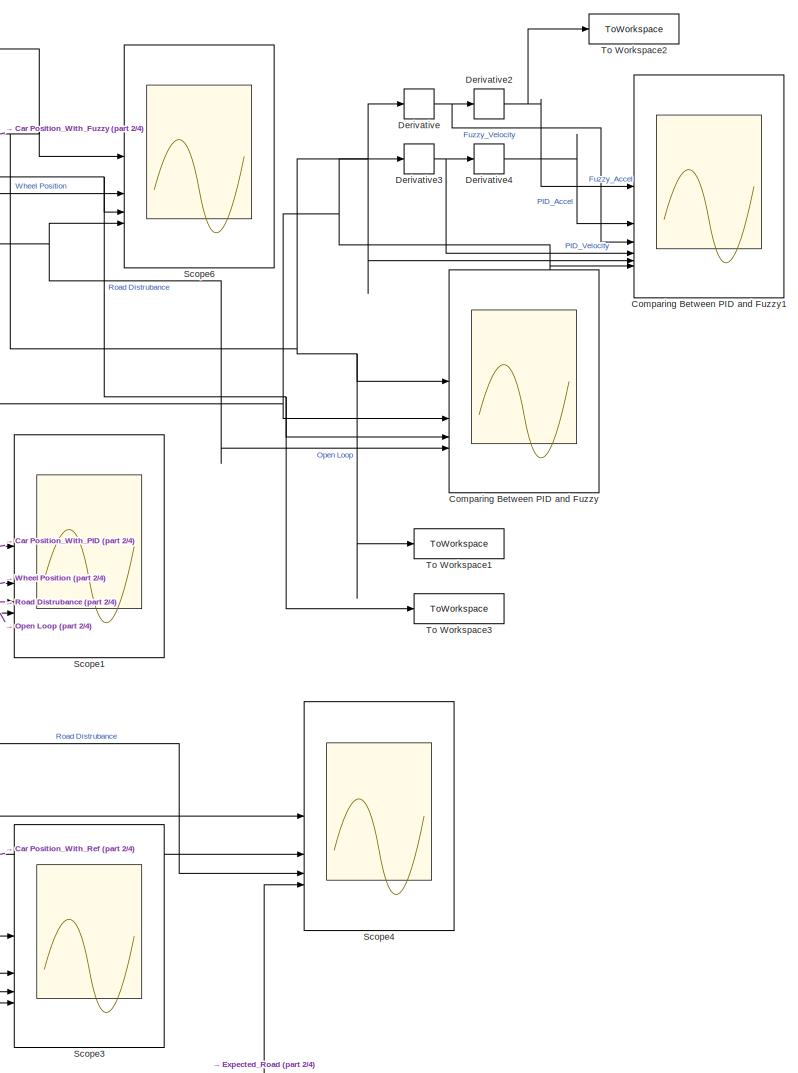
[diagram: root canvas - part 1/4, central region]
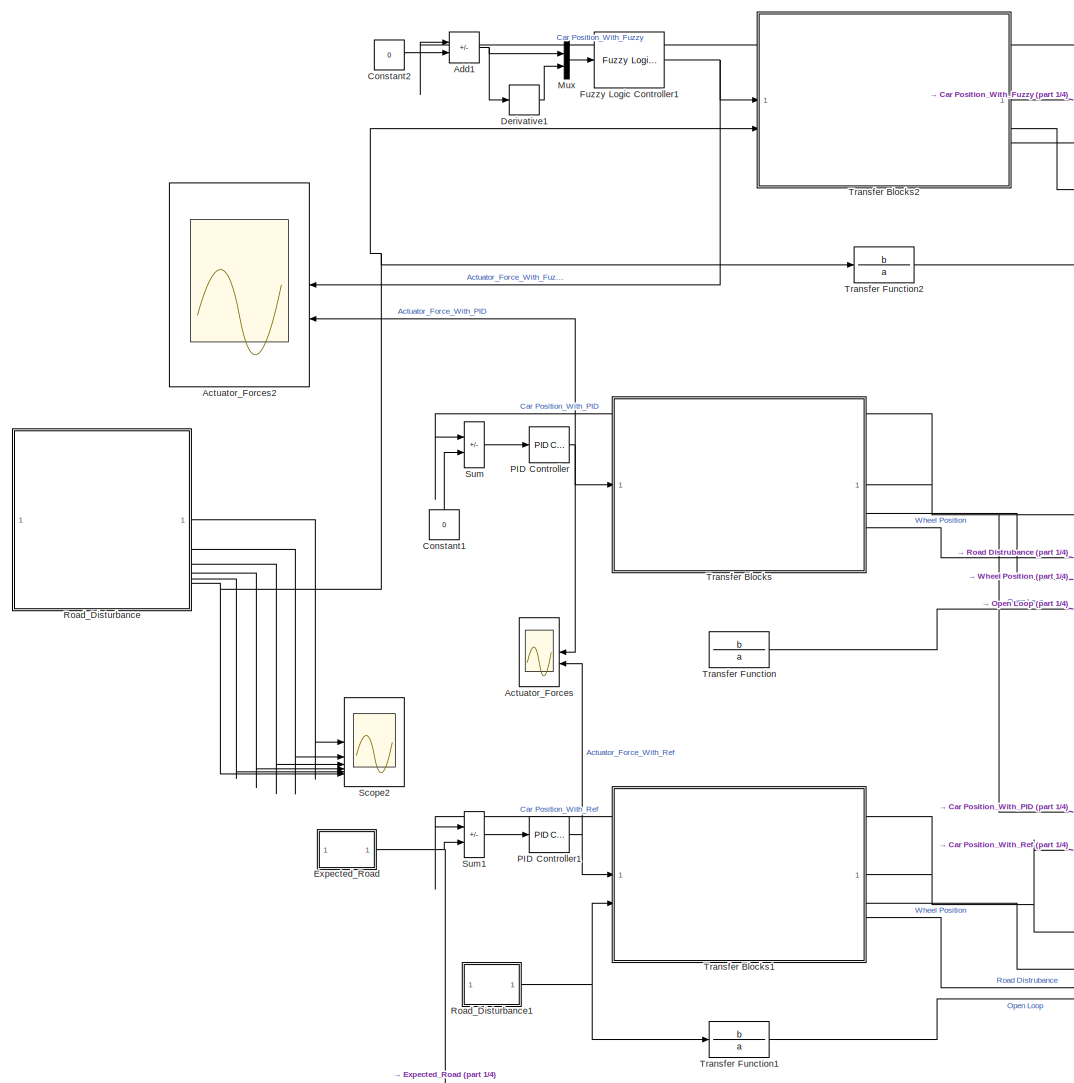
[diagram: root canvas - part 2/4, middle left region]
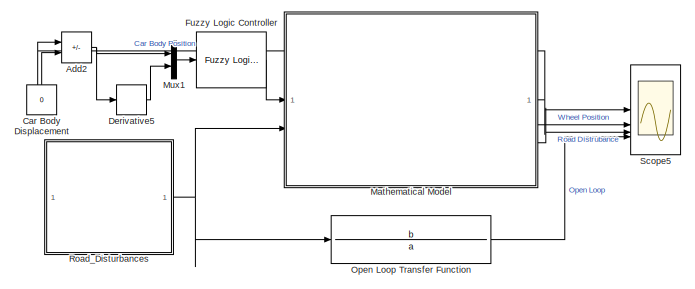
[diagram: root canvas - part 3/4, bottom right region]
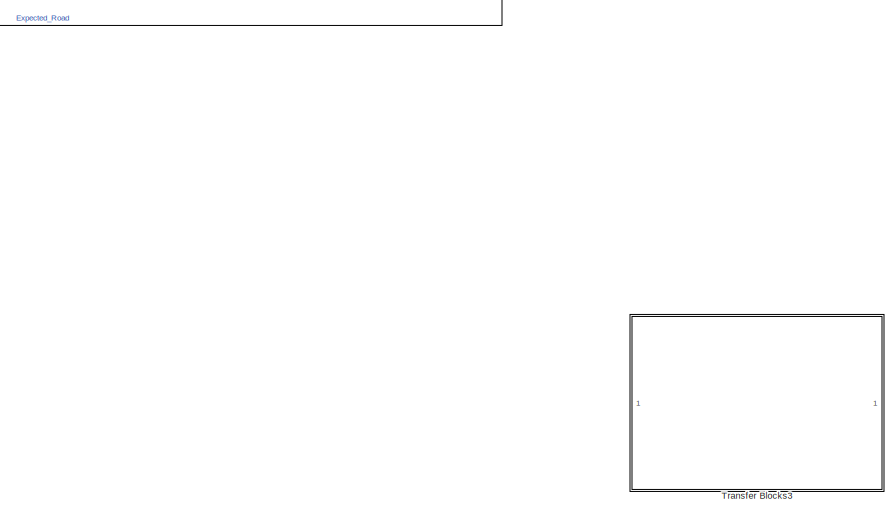
[diagram: root canvas - part 4/4, bottom center region]
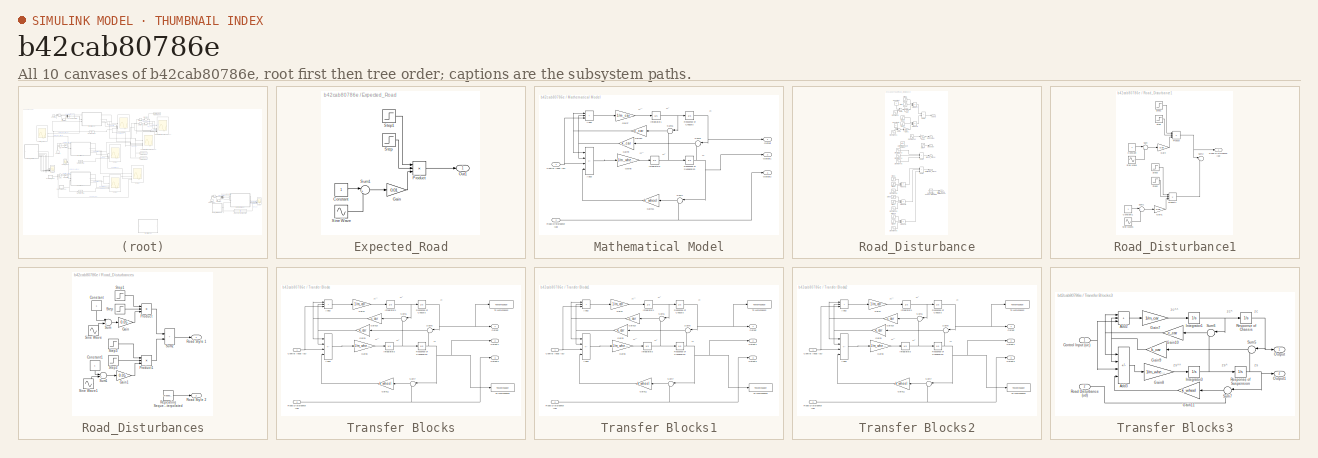
[diagram: thumbnail index - all 10 canvases of the model, root first then tree order]
MODEL slx_b42cab80786e
KIND model
CONFIG AbsTol = auto
CONFIG EnableMultiTasking = off
CONFIG FixedStep = 0.001
CONFIG MaxStep = 1e-3
CONFIG MinStep = auto
CONFIG RelTol = 1e-3
CONFIG SampleTimeConstraint = Unconstrained
CONFIG SolverName = FixedStepAuto
CONFIG StartTime = 0.0
CONFIG StopTime = 10
BLOCK [Scope] Actuator_Forces
  Commented = on
  Floating = off
  NameLocation = top
  NumInputPorts = 2
  ScopeSpecificationString = Simulink.scopes.TimeScopeBlockCfg('CurrentConfiguration', extmgr.ConfigurationSet(extmgr.Configuration('Core','General UI',true),extmgr.Configuration('Core','Source UI',true),extmgr.Configuration('Sources','WiredSimulink',true,'DataLoggingVariableName','ScopeData1'),extmgr.Configuration('Visuals','Time Domain',true,'SerializedDisplays',{struct('MinYLimReal','-1380.89586','MaxYLimReal','948.90487',...<+1524ch>
BLOCK [Scope] Actuator_Forces2
  Floating = off
  NameLocation = top
  NumInputPorts = 2
  ScopeSpecificationString = Simulink.scopes.TimeScopeBlockCfg('CurrentConfiguration', extmgr.ConfigurationSet(extmgr.Configuration('Core','General UI',true),extmgr.Configuration('Core','Source UI',true),extmgr.Configuration('Sources','WiredSimulink',true,'DataLoggingVariableName','ScopeData1'),extmgr.Configuration('Visuals','Time Domain',true,'SerializedDisplays',{struct('MinYLimReal','-1975.74271','MaxYLimReal','917.35302',...<+1553ch>
BLOCK [Sum] Add1
  IconShape = rectangular
  Inputs = -+
BLOCK [Sum] Add2
  IconShape = rectangular
  Inputs = -+
BLOCK [Constant] Car Body Displacement
  Value = 0
BLOCK [Scope] Comparing Between PID and Fuzzy
  Floating = off
  NumInputPorts = 4
  ScopeSpecificationString = Simulink.scopes.TimeScopeBlockCfg('CurrentConfiguration', extmgr.ConfigurationSet(extmgr.Configuration('Core','General UI',true),extmgr.Configuration('Core','Source UI',true),extmgr.Configuration('Sources','WiredSimulink',true,'DataLoggingVariableName','ScopeData3'),extmgr.Configuration('Visuals','Time Domain',true,'SerializedDisplays',{struct('MinYLimReal','-0.09339','MaxYLimReal','0.17281','YLab...<+1987ch>
BLOCK [Scope] Comparing Between PID and Fuzzy1
  Floating = off
  NumInputPorts = 6
  ScopeSpecificationString = Simulink.scopes.TimeScopeBlockCfg('CurrentConfiguration', extmgr.ConfigurationSet(extmgr.Configuration('Core','General UI',true),extmgr.Configuration('Core','Source UI',true),extmgr.Configuration('Sources','WiredSimulink',true,'DataLoggingVariableName','MF_5','DataLogging',true),extmgr.Configuration('Visuals','Time Domain',true,'SerializedDisplays',{struct('MinYLimReal','-1.27315','MaxYLimReal','1...<+1760ch>
BLOCK [Constant] Constant1
  NameLocation = right
  Value = 0
BLOCK [Constant] Constant2
  Value = 0
BLOCK [Derivative] Derivative
BLOCK [Derivative] Derivative1
BLOCK [Derivative] Derivative2
BLOCK [Derivative] Derivative3
BLOCK [Derivative] Derivative4
BLOCK [Derivative] Derivative5
BLOCK [SubSystem] Expected_Road
  Commented = on
BLOCK [Constant] Expected_Road/Constant
BLOCK [Gain] Expected_Road/Gain
  Gain = 0.01
BLOCK [Outport] Expected_Road/Out1
BLOCK [Product] Expected_Road/Product
  Inputs = 3
BLOCK [Sin] Expected_Road/Sine Wave
  Frequency = 0.5*pi
  Phase = pi/4
  SampleTime = 0
BLOCK [Step] Expected_Road/Step
  After = 0
  Before = 1
  SampleTime = 0
  Time = 4.5
BLOCK [Step] Expected_Road/Step1
  SampleTime = 0
  Time = 0.5
BLOCK [Sum] Expected_Road/Sum1
  Inputs = |+-
BLOCK [Reference] Fuzzy Logic Controller   REF=fuzblock/Fuzzy Logic   (lib defined in mdl_858b3b3e7478)
Controller
  SourceBlock = fuzblock/Fuzzy Logic \nController
  SourceType = Fuzzy Inference System
BLOCK [Reference] Fuzzy Logic Controller1  REF=fuzblock/Fuzzy Logic   (lib defined in mdl_858b3b3e7478)
Controller
  SourceBlock = fuzblock/Fuzzy Logic \nController
  SourceType = Fuzzy Inference System
BLOCK [SubSystem] Mathematical Model
BLOCK [Sum] Mathematical Model/Add2
  IconShape = rectangular
  Inputs = +++
BLOCK [Sum] Mathematical Model/Add3
  IconShape = rectangular
  Inputs = ---+
BLOCK [Inport] Mathematical Model/Control Input (uc)
BLOCK [Gain] Mathematical Model/Gain10
  Gain = c_car
  NameLocation = top
BLOCK [Gain] Mathematical Model/Gain11
  Gain = k_wheel
  NameLocation = top
BLOCK [Gain] Mathematical Model/Gain7
  Gain = 1/m_car
BLOCK [Gain] Mathematical Model/Gain8
  Gain = 1/m_wheel
BLOCK [Gain] Mathematical Model/Gain9
  Gain = k_car
  NameLocation = top
BLOCK [Integrator] Mathematical Model/Integrator1
BLOCK [Integrator] Mathematical Model/Integrator3
BLOCK [Outport] Mathematical Model/Output
BLOCK [Outport] Mathematical Model/Output1
  Port = 2
BLOCK [Outport] Mathematical Model/Output2
  Port = 3
BLOCK [Integrator] Mathematical Model/Response of Chassis
BLOCK [Integrator] Mathematical Model/Response of Suspension
BLOCK [Inport] Mathematical Model/Road Disturbance (ud)
  Port = 2
BLOCK [Sum] Mathematical Model/Sum5
  Inputs = |-+
  NameLocation = top
BLOCK [Sum] Mathematical Model/Sum6
  Inputs = |-+
  NameLocation = top
BLOCK [Sum] Mathematical Model/Sum7
  Inputs = |-+
  NameLocation = top
BLOCK [Mux] Mux
  DisplayOption = bar
  Inputs = 2
BLOCK [Mux] Mux1
  DisplayOption = bar
  Inputs = 2
BLOCK [TransferFcn] Open Loop Transfer Function
  Denominator = a
  Numerator = b
BLOCK [Reference] PID Controller  REF=slpidlib/PID Controller
  Commented = on
  LibrarySourceBlock = simulink/Continuous/PID Controller
  SourceBlock = slpidlib/PID Controller
  SourceType = PID 1dof
BLOCK [Reference] PID Controller1  REF=slpidlib/PID Controller
  Commented = on
  LibrarySourceBlock = simulink/Continuous/PID Controller
  SourceBlock = slpidlib/PID Controller
  SourceType = PID 1dof
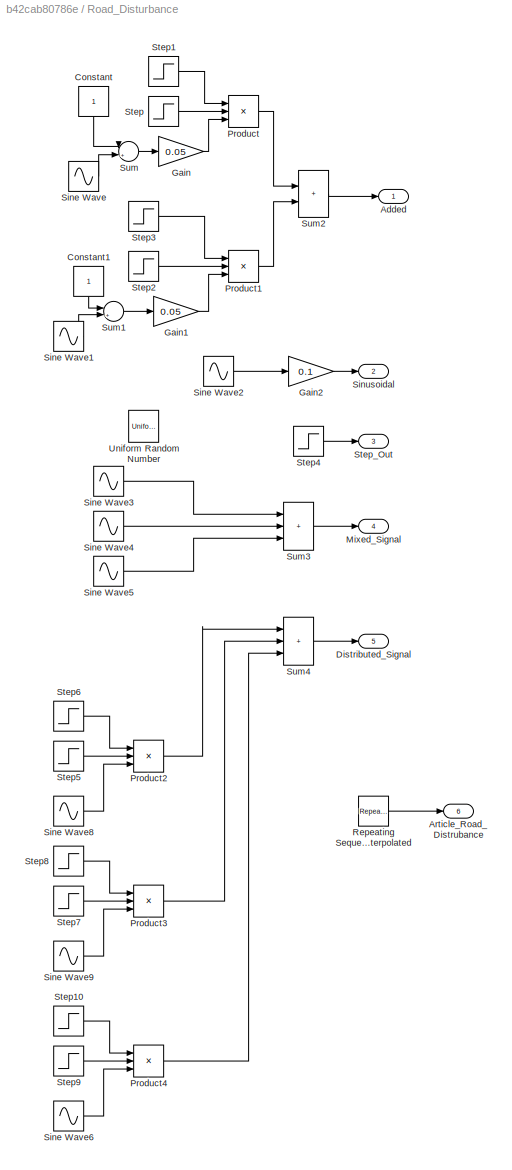
BLOCK [SubSystem] Road_Disturbance
BLOCK [Outport] Road_Disturbance/Added
BLOCK [Outport] Road_Disturbance/Article_Road_Distrubance
  Port = 6
BLOCK [Constant] Road_Disturbance/Constant
  NameLocation = left
BLOCK [Constant] Road_Disturbance/Constant1
  NameLocation = left
BLOCK [Outport] Road_Disturbance/Distributed_Signal
  Port = 5
BLOCK [Gain] Road_Disturbance/Gain
  Gain = 0.05
BLOCK [Gain] Road_Disturbance/Gain1
  Gain = 0.05
BLOCK [Gain] Road_Disturbance/Gain2
  Gain = 0.1
BLOCK [Outport] Road_Disturbance/Mixed_Signal
  Port = 4
BLOCK [Product] Road_Disturbance/Product
  Inputs = 3
BLOCK [Product] Road_Disturbance/Product1
  Inputs = 3
BLOCK [Product] Road_Disturbance/Product2
  Inputs = 3
BLOCK [Product] Road_Disturbance/Product3
  Inputs = 3
BLOCK [Product] Road_Disturbance/Product4
  Inputs = 3
BLOCK [Reference] Road_Disturbance/Repeating Sequence Interpolated  REF=simulink/Sources/Repeating
Sequence
Interpolated
  SourceBlock = simulink/Sources/Repeating\nSequence\nInterpolated
  SourceType = Repeating Sequence Interpolated
BLOCK [Sin] Road_Disturbance/Sine Wave
  Frequency = 2*pi
  Phase = pi*3/2
  SampleTime = 0
BLOCK [Sin] Road_Disturbance/Sine Wave1
  Frequency = 2*pi
  Phase = pi*3/2
  SampleTime = 0
BLOCK [Sin] Road_Disturbance/Sine Wave2
  Frequency = 2*pi
  Phase = pi
  SampleTime = 0
BLOCK [Sin] Road_Disturbance/Sine Wave3
  Amplitude = 0.01
  Frequency = 15*pi
  SampleTime = 0
BLOCK [Sin] Road_Disturbance/Sine Wave4
  Amplitude = 0.02
  Frequency = 10*pi
  Phase = pi/2
  SampleTime = 0
BLOCK [Sin] Road_Disturbance/Sine Wave5
  Amplitude = 0.03
  Frequency = pi
  SampleTime = 0
BLOCK [Sin] Road_Disturbance/Sine Wave6
  Amplitude = 0.08
  Frequency = pi
  Phase = pi*3/2
  SampleTime = 0
BLOCK [Sin] Road_Disturbance/Sine Wave8
  Amplitude = 0.1
  Frequency = pi
  Phase = pi*3/2
  SampleTime = 0
BLOCK [Sin] Road_Disturbance/Sine Wave9
  Amplitude = 0.05
  Frequency = pi
  Phase = pi*3/2
  SampleTime = 0
BLOCK [Outport] Road_Disturbance/Sinusoidal
  Port = 2
BLOCK [Step] Road_Disturbance/Step
  After = 0
  Before = 1
  SampleTime = 0
  Time = 1.5
BLOCK [Step] Road_Disturbance/Step1
  SampleTime = 0
  Time = 0.5
BLOCK [Step] Road_Disturbance/Step10
  SampleTime = 0
  Time = 8.5
BLOCK [Step] Road_Disturbance/Step2
  After = 0
  Before = 1
  SampleTime = 0
  Time = 3.5
BLOCK [Step] Road_Disturbance/Step3
  SampleTime = 0
  Time = 2.5
BLOCK [Step] Road_Disturbance/Step4
  After = 0.015
  SampleTime = 0
  Time = 2
BLOCK [Step] Road_Disturbance/Step5
  After = 0
  Before = 1
  SampleTime = 0
  Time = 1.5
BLOCK [Step] Road_Disturbance/Step6
  SampleTime = 0
  Time = 0.5
BLOCK [Step] Road_Disturbance/Step7
  After = 0
  Before = 1
  SampleTime = 0
  Time = 5.5
BLOCK [Step] Road_Disturbance/Step8
  SampleTime = 0
  Time = 4.5
BLOCK [Step] Road_Disturbance/Step9
  After = 0
  Before = 1
  SampleTime = 0
  Time = 9.5
BLOCK [Outport] Road_Disturbance/Step_Out
  Port = 3
BLOCK [Sum] Road_Disturbance/Sum
  Inputs = |+-
BLOCK [Sum] Road_Disturbance/Sum1
  Inputs = |+-
BLOCK [Sum] Road_Disturbance/Sum2
  IconShape = rectangular
BLOCK [Sum] Road_Disturbance/Sum3
  IconShape = rectangular
  Inputs = +++
BLOCK [Sum] Road_Disturbance/Sum4
  IconShape = rectangular
  Inputs = +++
BLOCK [UniformRandomNumber] Road_Disturbance/Uniform Random Number
  Maximum = 0.05
  Minimum = -0.05
  SampleTime = 0.1
BLOCK [SubSystem] Road_Disturbance1
  Commented = on
BLOCK [Constant] Road_Disturbance1/Constant
BLOCK [Constant] Road_Disturbance1/Constant1
BLOCK [Gain] Road_Disturbance1/Gain
  Gain = 0.05
BLOCK [Gain] Road_Disturbance1/Gain1
  Gain = 0.05
BLOCK [Product] Road_Disturbance1/Product
  Inputs = 3
BLOCK [Product] Road_Disturbance1/Product1
  Inputs = 3
BLOCK [Outport] Road_Disturbance1/Road Disturbance (ud)
BLOCK [Sin] Road_Disturbance1/Sine Wave
  Frequency = 2*pi
  Phase = pi*3/2
  SampleTime = 0
BLOCK [Sin] Road_Disturbance1/Sine Wave1
  Frequency = 2*pi
  Phase = pi*3/2
  SampleTime = 0
BLOCK [Step] Road_Disturbance1/Step
  After = 0
  Before = 1
  SampleTime = 0
  Time = 1.5
BLOCK [Step] Road_Disturbance1/Step1
  SampleTime = 0
  Time = 0.5
BLOCK [Step] Road_Disturbance1/Step2
  After = 0
  Before = 1
  SampleTime = 0
  Time = 3.5
BLOCK [Step] Road_Disturbance1/Step3
  SampleTime = 0
  Time = 2.5
BLOCK [Sum] Road_Disturbance1/Sum
  Inputs = |+-
BLOCK [Sum] Road_Disturbance1/Sum1
  Inputs = |+-
BLOCK [Sum] Road_Disturbance1/Sum2
  Inputs = |++
BLOCK [SubSystem] Road_Disturbances
BLOCK [Constant] Road_Disturbances/Constant
  NameLocation = left
BLOCK [Constant] Road_Disturbances/Constant1
  NameLocation = left
BLOCK [Gain] Road_Disturbances/Gain
  Gain = 0.05
BLOCK [Gain] Road_Disturbances/Gain1
  Gain = 0.05
BLOCK [Product] Road_Disturbances/Product
  Inputs = 3
BLOCK [Product] Road_Disturbances/Product1
  Inputs = 3
BLOCK [Reference] Road_Disturbances/Repeating Sequence Interpolated  REF=simulink/Sources/Repeating
Sequence
Interpolated
  SourceBlock = simulink/Sources/Repeating\nSequence\nInterpolated
  SourceType = Repeating Sequence Interpolated
BLOCK [Outport] Road_Disturbances/Road Style 1
BLOCK [Outport] Road_Disturbances/Road Style 2
  Port = 2
BLOCK [Sin] Road_Disturbances/Sine Wave
  Frequency = 2*pi
  Phase = pi*3/2
  SampleTime = 0
BLOCK [Sin] Road_Disturbances/Sine Wave1
  Frequency = 2*pi
  Phase = pi*3/2
  SampleTime = 0
BLOCK [Step] Road_Disturbances/Step
  After = 0
  Before = 1
  SampleTime = 0
  Time = 1.5
BLOCK [Step] Road_Disturbances/Step1
  SampleTime = 0
  Time = 0.5
BLOCK [Step] Road_Disturbances/Step2
  After = 0
  Before = 1
  SampleTime = 0
  Time = 3.5
BLOCK [Step] Road_Disturbances/Step3
  SampleTime = 0
  Time = 2.5
BLOCK [Sum] Road_Disturbances/Sum
  Inputs = |+-
BLOCK [Sum] Road_Disturbances/Sum1
  Inputs = |+-
BLOCK [Sum] Road_Disturbances/Sum2
  IconShape = rectangular
BLOCK [Scope] Scope1
  Commented = on
  Floating = off
  NumInputPorts = 4
  ScopeSpecificationString = Simulink.scopes.TimeScopeBlockCfg('CurrentConfiguration', extmgr.ConfigurationSet(extmgr.Configuration('Core','General UI',true),extmgr.Configuration('Core','Source UI',true),extmgr.Configuration('Sources','WiredSimulink',true),extmgr.Configuration('Visuals','Time Domain',true,'SerializedDisplays',{struct('MinYLimReal','-0.09037','MaxYLimReal','0.16517','YLabelReal','','MinYLimMag','0.00000','MaxY...<+1596ch>
BLOCK [Scope] Scope2
  Floating = off
  NumInputPorts = 6
  ScopeSpecificationString = Simulink.scopes.TimeScopeBlockCfg('CurrentConfiguration', extmgr.ConfigurationSet(extmgr.Configuration('Core','General UI',true),extmgr.Configuration('Core','Source UI',true),extmgr.Configuration('Sources','WiredSimulink',true,'DataLoggingVariableName','ScopeData1'),extmgr.Configuration('Visuals','Time Domain',true,'SerializedDisplays',{struct('MinYLimReal','-0.125','MaxYLimReal','0.125','YLabelRe...<+1613ch>
BLOCK [Scope] Scope3
  Commented = on
  Floating = off
  NumInputPorts = 4
  ScopeSpecificationString = Simulink.scopes.TimeScopeBlockCfg('CurrentConfiguration', extmgr.ConfigurationSet(extmgr.Configuration('Core','General UI',true),extmgr.Configuration('Core','Source UI',true),extmgr.Configuration('Sources','WiredSimulink',true,'DataLoggingVariableName','ScopeData3'),extmgr.Configuration('Visuals','Time Domain',true,'SerializedDisplays',{struct('MinYLimReal','-0.09339','MaxYLimReal','0.17281','YLab...<+1637ch>
BLOCK [Scope] Scope4
  Commented = on
  Floating = off
  NumInputPorts = 4
  ScopeSpecificationString = Simulink.scopes.TimeScopeBlockCfg('CurrentConfiguration', extmgr.ConfigurationSet(extmgr.Configuration('Core','General UI',true),extmgr.Configuration('Core','Source UI',true),extmgr.Configuration('Sources','WiredSimulink',true,'DataLoggingVariableName','ScopeData4'),extmgr.Configuration('Visuals','Time Domain',true,'SerializedDisplays',{struct('MinYLimReal','-0.01929','MaxYLimReal','0.11325','YLab...<+1546ch>
BLOCK [Scope] Scope5
  Floating = off
  NumInputPorts = 4
  ScopeSpecificationString = Simulink.scopes.TimeScopeBlockCfg('CurrentConfiguration', extmgr.ConfigurationSet(extmgr.Configuration('Core','General UI',true),extmgr.Configuration('Core','Source UI',true),extmgr.Configuration('Sources','WiredSimulink',true,'DataLoggingVariableName','ScopeData1'),extmgr.Configuration('Visuals','Time Domain',true,'SerializedDisplays',{struct('MinYLimReal','-79935532578401508652795436746455783670...<+3185ch>
BLOCK [Scope] Scope6
  Floating = off
  NumInputPorts = 4
  ScopeSpecificationString = Simulink.scopes.TimeScopeBlockCfg('CurrentConfiguration', extmgr.ConfigurationSet(extmgr.Configuration('Core','General UI',true),extmgr.Configuration('Core','Source UI',true),extmgr.Configuration('Sources','WiredSimulink',true,'DataLoggingVariableName','ScopeData2'),extmgr.Configuration('Visuals','Time Domain',true,'SerializedDisplays',{struct('MinYLimReal','-79935532578401508652795436746455783670...<+3185ch>
BLOCK [Sum] Sum
  Commented = on
  IconShape = rectangular
  Inputs = |-+
BLOCK [Sum] Sum1
  Commented = on
  IconShape = rectangular
  Inputs = |-+
BLOCK [ToWorkspace] To Workspace1
  FixptAsFi = on
  MaxDataPoints = inf
  SampleTime = -1
  SaveFormat = Timeseries
  VariableName = Car_Displacement
BLOCK [ToWorkspace] To Workspace2
  FixptAsFi = on
  MaxDataPoints = inf
  SampleTime = -1
  SaveFormat = Timeseries
  VariableName = Accleration
BLOCK [ToWorkspace] To Workspace3
  FixptAsFi = on
  MaxDataPoints = inf
  SampleTime = -1
  SaveFormat = Timeseries
  VariableName = Road_Disturbance
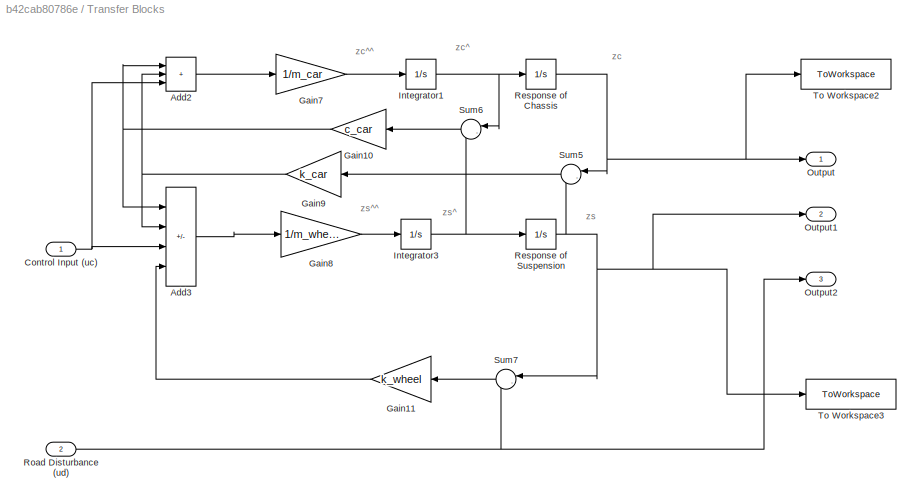
BLOCK [SubSystem] Transfer Blocks
  Commented = on
BLOCK [Sum] Transfer Blocks/Add2
  IconShape = rectangular
  Inputs = +++
BLOCK [Sum] Transfer Blocks/Add3
  IconShape = rectangular
  Inputs = ---+
BLOCK [Inport] Transfer Blocks/Control Input (uc)
BLOCK [Gain] Transfer Blocks/Gain10
  Gain = c_car
  NameLocation = top
BLOCK [Gain] Transfer Blocks/Gain11
  Gain = k_wheel
  NameLocation = top
BLOCK [Gain] Transfer Blocks/Gain7
  Gain = 1/m_car
BLOCK [Gain] Transfer Blocks/Gain8
  Gain = 1/m_wheel
BLOCK [Gain] Transfer Blocks/Gain9
  Gain = k_car
  NameLocation = top
BLOCK [Integrator] Transfer Blocks/Integrator1
BLOCK [Integrator] Transfer Blocks/Integrator3
BLOCK [Outport] Transfer Blocks/Output
BLOCK [Outport] Transfer Blocks/Output1
  Port = 2
BLOCK [Outport] Transfer Blocks/Output2
  Port = 3
BLOCK [Integrator] Transfer Blocks/Response of Chassis
BLOCK [Integrator] Transfer Blocks/Response of Suspension
BLOCK [Inport] Transfer Blocks/Road Disturbance (ud)
  Port = 2
BLOCK [Sum] Transfer Blocks/Sum5
  Inputs = |-+
  NameLocation = top
BLOCK [Sum] Transfer Blocks/Sum6
  Inputs = |-+
  NameLocation = top
BLOCK [Sum] Transfer Blocks/Sum7
  Inputs = |-+
  NameLocation = top
BLOCK [ToWorkspace] Transfer Blocks/To Workspace2
  FixptAsFi = on
  MaxDataPoints = inf
  SampleTime = -1
  SaveFormat = Timeseries
  VariableName = Z_Car
BLOCK [ToWorkspace] Transfer Blocks/To Workspace3
  FixptAsFi = on
  MaxDataPoints = inf
  SampleTime = -1
  SaveFormat = Timeseries
  VariableName = Z_Wheel
BLOCK [SubSystem] Transfer Blocks1
  Commented = on
BLOCK [Sum] Transfer Blocks1/Add2
  IconShape = rectangular
  Inputs = +++
BLOCK [Sum] Transfer Blocks1/Add3
  IconShape = rectangular
  Inputs = ---+
BLOCK [Inport] Transfer Blocks1/Control Input (uc)
BLOCK [Gain] Transfer Blocks1/Gain10
  Gain = c_car
  NameLocation = top
BLOCK [Gain] Transfer Blocks1/Gain11
  Gain = k_wheel
  NameLocation = top
BLOCK [Gain] Transfer Blocks1/Gain7
  Gain = 1/m_car
BLOCK [Gain] Transfer Blocks1/Gain8
  Gain = 1/m_wheel
BLOCK [Gain] Transfer Blocks1/Gain9
  Gain = k_car
  NameLocation = top
BLOCK [Integrator] Transfer Blocks1/Integrator1
BLOCK [Integrator] Transfer Blocks1/Integrator3
BLOCK [Outport] Transfer Blocks1/Output
BLOCK [Outport] Transfer Blocks1/Output1
  Port = 2
BLOCK [Outport] Transfer Blocks1/Output2
  Port = 3
BLOCK [Integrator] Transfer Blocks1/Response of Chassis
BLOCK [Integrator] Transfer Blocks1/Response of Suspension
BLOCK [Inport] Transfer Blocks1/Road Disturbance (ud)
  Port = 2
BLOCK [Sum] Transfer Blocks1/Sum5
  Inputs = |-+
  NameLocation = top
BLOCK [Sum] Transfer Blocks1/Sum6
  Inputs = |-+
  NameLocation = top
BLOCK [Sum] Transfer Blocks1/Sum7
  Inputs = |-+
  NameLocation = top
BLOCK [ToWorkspace] Transfer Blocks1/To Workspace2
  FixptAsFi = on
  MaxDataPoints = inf
  SampleTime = -1
  SaveFormat = Timeseries
  VariableName = Z_Car1
BLOCK [ToWorkspace] Transfer Blocks1/To Workspace3
  FixptAsFi = on
  MaxDataPoints = inf
  SampleTime = -1
  SaveFormat = Timeseries
  VariableName = Z_Wheel1
BLOCK [SubSystem] Transfer Blocks2
BLOCK [Sum] Transfer Blocks2/Add2
  IconShape = rectangular
  Inputs = +++
BLOCK [Sum] Transfer Blocks2/Add3
  IconShape = rectangular
  Inputs = ---+
BLOCK [Inport] Transfer Blocks2/Control Input (uc)
BLOCK [Gain] Transfer Blocks2/Gain10
  Gain = c_car
  NameLocation = top
BLOCK [Gain] Transfer Blocks2/Gain11
  Gain = k_wheel
  NameLocation = top
BLOCK [Gain] Transfer Blocks2/Gain7
  Gain = 1/m_car
BLOCK [Gain] Transfer Blocks2/Gain8
  Gain = 1/m_wheel
BLOCK [Gain] Transfer Blocks2/Gain9
  Gain = k_car
  NameLocation = top
BLOCK [Integrator] Transfer Blocks2/Integrator1
BLOCK [Integrator] Transfer Blocks2/Integrator3
BLOCK [Outport] Transfer Blocks2/Output
BLOCK [Outport] Transfer Blocks2/Output1
  Port = 2
BLOCK [Outport] Transfer Blocks2/Output2
  Port = 3
BLOCK [Integrator] Transfer Blocks2/Response of Chassis
BLOCK [Integrator] Transfer Blocks2/Response of Suspension
BLOCK [Inport] Transfer Blocks2/Road Disturbance (ud)
  Port = 2
BLOCK [Sum] Transfer Blocks2/Sum5
  Inputs = |-+
  NameLocation = top
BLOCK [Sum] Transfer Blocks2/Sum6
  Inputs = |-+
  NameLocation = top
BLOCK [Sum] Transfer Blocks2/Sum7
  Inputs = |-+
  NameLocation = top
BLOCK [ToWorkspace] Transfer Blocks2/To Workspace2
  FixptAsFi = on
  MaxDataPoints = inf
  SampleTime = -1
  SaveFormat = Timeseries
  VariableName = Z_Car4
BLOCK [ToWorkspace] Transfer Blocks2/To Workspace3
  FixptAsFi = on
  MaxDataPoints = inf
  SampleTime = -1
  SaveFormat = Timeseries
  VariableName = Z_Wheel4
BLOCK [SubSystem] Transfer Blocks3
  Commented = on
BLOCK [Sum] Transfer Blocks3/Add2
  IconShape = rectangular
  Inputs = +++
BLOCK [Sum] Transfer Blocks3/Add3
  IconShape = rectangular
  Inputs = ---+
BLOCK [Inport] Transfer Blocks3/Control Input (uc)
BLOCK [Gain] Transfer Blocks3/Gain10
  Gain = c_car
  NameLocation = top
BLOCK [Gain] Transfer Blocks3/Gain11
  Gain = k_wheel
  NameLocation = top
BLOCK [Gain] Transfer Blocks3/Gain7
  Gain = 1/m_car
BLOCK [Gain] Transfer Blocks3/Gain8
  Gain = 1/m_wheel
BLOCK [Gain] Transfer Blocks3/Gain9
  Gain = k_car
  NameLocation = top
BLOCK [Integrator] Transfer Blocks3/Integrator1
BLOCK [Integrator] Transfer Blocks3/Integrator3
BLOCK [Outport] Transfer Blocks3/Output
BLOCK [Outport] Transfer Blocks3/Output1
  Port = 2
BLOCK [Integrator] Transfer Blocks3/Response of Chassis
BLOCK [Integrator] Transfer Blocks3/Response of Suspension
BLOCK [Inport] Transfer Blocks3/Road Disturbance (ud)
  Port = 2
BLOCK [Sum] Transfer Blocks3/Sum5
  Inputs = |-+
  NameLocation = top
BLOCK [Sum] Transfer Blocks3/Sum6
  Inputs = |-+
  NameLocation = top
BLOCK [Sum] Transfer Blocks3/Sum7
  Inputs = |-+
  NameLocation = top
BLOCK [TransferFcn] Transfer Function
  Commented = on
  Denominator = a
  Numerator = b
BLOCK [TransferFcn] Transfer Function1
  Commented = on
  Denominator = a
  Numerator = b
BLOCK [TransferFcn] Transfer Function2
  Denominator = a
  Numerator = b
ANNOTATION Mathematical Model: zc
ANNOTATION Mathematical Model: zc^
ANNOTATION Mathematical Model: zc^^
ANNOTATION Mathematical Model: zs
ANNOTATION Mathematical Model: zs^
ANNOTATION Mathematical Model: zs^^
ANNOTATION Transfer Blocks: zc
ANNOTATION Transfer Blocks: zc^
ANNOTATION Transfer Blocks: zc^^
ANNOTATION Transfer Blocks: zs
ANNOTATION Transfer Blocks: zs^
ANNOTATION Transfer Blocks: zs^^
ANNOTATION Transfer Blocks1: zc
ANNOTATION Transfer Blocks1: zc^
ANNOTATION Transfer Blocks1: zc^^
ANNOTATION Transfer Blocks1: zs
ANNOTATION Transfer Blocks1: zs^
ANNOTATION Transfer Blocks1: zs^^
ANNOTATION Transfer Blocks2: zc
ANNOTATION Transfer Blocks2: zc^
ANNOTATION Transfer Blocks2: zc^^
ANNOTATION Transfer Blocks2: zs
ANNOTATION Transfer Blocks2: zs^
ANNOTATION Transfer Blocks2: zs^^
ANNOTATION Transfer Blocks3: zc
ANNOTATION Transfer Blocks3: zc^
ANNOTATION Transfer Blocks3: zc^^
ANNOTATION Transfer Blocks3: zs
ANNOTATION Transfer Blocks3: zs^
ANNOTATION Transfer Blocks3: zs^^
NET Add1:1 -> Derivative1:1, Mux:1
NET Add2:1 -> Derivative5:1, Mux1:1
LINE Car Body Displacement:1 -> Add2:2
LINE Constant1:1 -> Sum:2
LINE Constant2:1 -> Add1:2
LINE Derivative1:1 -> Mux:2
NET Derivative2:1 -> Comparing Between PID and Fuzzy1:1, To Workspace2:1
NET Derivative3:1 -> Comparing Between PID and Fuzzy1:4, Derivative4:1
LINE Derivative4:1 -> Comparing Between PID and Fuzzy1:2
LINE Derivative5:1 -> Mux1:2
NET Derivative:1 -> Comparing Between PID and Fuzzy1:3, Derivative2:1
LINE Expected_Road/Constant:1 -> Expected_Road/Sum1:1
LINE Expected_Road/Gain:1 -> Expected_Road/Product:3
LINE Expected_Road/Product:1 -> Expected_Road/Out1:1
LINE Expected_Road/Sine Wave:1 -> Expected_Road/Sum1:2
LINE Expected_Road/Step1:1 -> Expected_Road/Product:1
LINE Expected_Road/Step:1 -> Expected_Road/Product:2
LINE Expected_Road/Sum1:1 -> Expected_Road/Gain:1
NET Expected_Road:1 -> Scope4:4, Sum1:2
LINE Fuzzy Logic Controller :1 -> Mathematical Model:1
NET Fuzzy Logic Controller1:1 -> Actuator_Forces2:1, Transfer Blocks2:1
LINE Mathematical Model/Add2:1 -> Mathematical Model/Gain7:1
LINE Mathematical Model/Add3:1 -> Mathematical Model/Gain8:1
NET Mathematical Model/Control Input (uc):1 -> Mathematical Model/Add2:3, Mathematical Model/Add3:3
NET Mathematical Model/Gain10:1 -> Mathematical Model/Add2:1, Mathematical Model/Add3:1
LINE Mathematical Model/Gain11:1 -> Mathematical Model/Add3:4
LINE Mathematical Model/Gain7:1 -> Mathematical Model/Integrator1:1
LINE Mathematical Model/Gain8:1 -> Mathematical Model/Integrator3:1
NET Mathematical Model/Gain9:1 -> Mathematical Model/Add2:2, Mathematical Model/Add3:2
NET Mathematical Model/Integrator1:1 -> Mathematical Model/Response of Chassis:1, Mathematical Model/Sum6:1
NET Mathematical Model/Integrator3:1 -> Mathematical Model/Response of Suspension:1, Mathematical Model/Sum6:2
NET Mathematical Model/Response of Chassis:1 -> Mathematical Model/Output:1, Mathematical Model/Sum5:1
NET Mathematical Model/Response of Suspension:1 -> Mathematical Model/Output1:1, Mathematical Model/Sum5:2, Mathematical Model/Sum7:1
NET Mathematical Model/Road Disturbance (ud):1 -> Mathematical Model/Output2:1, Mathematical Model/Sum7:2
LINE Mathematical Model/Sum5:1 -> Mathematical Model/Gain9:1
LINE Mathematical Model/Sum6:1 -> Mathematical Model/Gain10:1
LINE Mathematical Model/Sum7:1 -> Mathematical Model/Gain11:1
NET Mathematical Model:1 -> Add2:1, Scope5:1
LINE Mathematical Model:2 -> Scope5:2
LINE Mathematical Model:3 -> Scope5:3
LINE Mux1:1 -> Fuzzy Logic Controller :1
LINE Mux:1 -> Fuzzy Logic Controller1:1
LINE Open Loop Transfer Function:1 -> Scope5:4
NET PID Controller1:1 -> Actuator_Forces:2, Transfer Blocks1:1
NET PID Controller:1 -> Actuator_Forces2:2, Actuator_Forces:1, Transfer Blocks:1
LINE Road_Disturbance/Constant1:1 -> Road_Disturbance/Sum1:1
LINE Road_Disturbance/Constant:1 -> Road_Disturbance/Sum:1
LINE Road_Disturbance/Gain1:1 -> Road_Disturbance/Product1:3
LINE Road_Disturbance/Gain2:1 -> Road_Disturbance/Sinusoidal:1
LINE Road_Disturbance/Gain:1 -> Road_Disturbance/Product:3
LINE Road_Disturbance/Product1:1 -> Road_Disturbance/Sum2:2
LINE Road_Disturbance/Product2:1 -> Road_Disturbance/Sum4:1
LINE Road_Disturbance/Product3:1 -> Road_Disturbance/Sum4:2
LINE Road_Disturbance/Product4:1 -> Road_Disturbance/Sum4:3
LINE Road_Disturbance/Product:1 -> Road_Disturbance/Sum2:1
LINE Road_Disturbance/Repeating Sequence Interpolated:1 -> Road_Disturbance/Article_Road_Distrubance:1
LINE Road_Disturbance/Sine Wave1:1 -> Road_Disturbance/Sum1:2
LINE Road_Disturbance/Sine Wave2:1 -> Road_Disturbance/Gain2:1
LINE Road_Disturbance/Sine Wave3:1 -> Road_Disturbance/Sum3:1
LINE Road_Disturbance/Sine Wave4:1 -> Road_Disturbance/Sum3:2
LINE Road_Disturbance/Sine Wave5:1 -> Road_Disturbance/Sum3:3
LINE Road_Disturbance/Sine Wave6:1 -> Road_Disturbance/Product4:3
LINE Road_Disturbance/Sine Wave8:1 -> Road_Disturbance/Product2:3
LINE Road_Disturbance/Sine Wave9:1 -> Road_Disturbance/Product3:3
LINE Road_Disturbance/Sine Wave:1 -> Road_Disturbance/Sum:2
LINE Road_Disturbance/Step10:1 -> Road_Disturbance/Product4:1
LINE Road_Disturbance/Step1:1 -> Road_Disturbance/Product:1
LINE Road_Disturbance/Step2:1 -> Road_Disturbance/Product1:2
LINE Road_Disturbance/Step3:1 -> Road_Disturbance/Product1:1
LINE Road_Disturbance/Step4:1 -> Road_Disturbance/Step_Out:1
LINE Road_Disturbance/Step5:1 -> Road_Disturbance/Product2:2
LINE Road_Disturbance/Step6:1 -> Road_Disturbance/Product2:1
LINE Road_Disturbance/Step7:1 -> Road_Disturbance/Product3:2
LINE Road_Disturbance/Step8:1 -> Road_Disturbance/Product3:1
LINE Road_Disturbance/Step9:1 -> Road_Disturbance/Product4:2
LINE Road_Disturbance/Step:1 -> Road_Disturbance/Product:2
LINE Road_Disturbance/Sum1:1 -> Road_Disturbance/Gain1:1
LINE Road_Disturbance/Sum2:1 -> Road_Disturbance/Added:1
LINE Road_Disturbance/Sum3:1 -> Road_Disturbance/Mixed_Signal:1
LINE Road_Disturbance/Sum4:1 -> Road_Disturbance/Distributed_Signal:1
LINE Road_Disturbance/Sum:1 -> Road_Disturbance/Gain:1
LINE Road_Disturbance1/Constant1:1 -> Road_Disturbance1/Sum1:1
LINE Road_Disturbance1/Constant:1 -> Road_Disturbance1/Sum:1
LINE Road_Disturbance1/Gain1:1 -> Road_Disturbance1/Product1:3
LINE Road_Disturbance1/Gain:1 -> Road_Disturbance1/Product:3
LINE Road_Disturbance1/Product1:1 -> Road_Disturbance1/Sum2:2
NET Road_Disturbance1/Product:1 -> Road_Disturbance1/Road Disturbance (ud):1, Road_Disturbance1/Sum2:1
LINE Road_Disturbance1/Sine Wave1:1 -> Road_Disturbance1/Sum1:2
LINE Road_Disturbance1/Sine Wave:1 -> Road_Disturbance1/Sum:2
LINE Road_Disturbance1/Step1:1 -> Road_Disturbance1/Product:1
LINE Road_Disturbance1/Step2:1 -> Road_Disturbance1/Product1:2
LINE Road_Disturbance1/Step3:1 -> Road_Disturbance1/Product1:1
LINE Road_Disturbance1/Step:1 -> Road_Disturbance1/Product:2
LINE Road_Disturbance1/Sum1:1 -> Road_Disturbance1/Gain1:1
LINE Road_Disturbance1/Sum:1 -> Road_Disturbance1/Gain:1
NET Road_Disturbance1:1 -> Transfer Blocks1:2, Transfer Function1:1
LINE Road_Disturbance:1 -> Scope2:1
LINE Road_Disturbance:2 -> Scope2:2
LINE Road_Disturbance:3 -> Scope2:3
LINE Road_Disturbance:4 -> Scope2:4
LINE Road_Disturbance:5 -> Scope2:5
NET Road_Disturbance:6 -> Scope2:6, Transfer Blocks2:2, Transfer Function2:1
LINE Road_Disturbances/Constant1:1 -> Road_Disturbances/Sum1:1
LINE Road_Disturbances/Constant:1 -> Road_Disturbances/Sum:1
LINE Road_Disturbances/Gain1:1 -> Road_Disturbances/Product1:3
LINE Road_Disturbances/Gain:1 -> Road_Disturbances/Product:3
LINE Road_Disturbances/Product1:1 -> Road_Disturbances/Sum2:2
LINE Road_Disturbances/Product:1 -> Road_Disturbances/Sum2:1
LINE Road_Disturbances/Repeating Sequence Interpolated:1 -> Road_Disturbances/Road Style 2:1
LINE Road_Disturbances/Sine Wave1:1 -> Road_Disturbances/Sum1:2
LINE Road_Disturbances/Sine Wave:1 -> Road_Disturbances/Sum:2
LINE Road_Disturbances/Step1:1 -> Road_Disturbances/Product:1
LINE Road_Disturbances/Step2:1 -> Road_Disturbances/Product1:2
LINE Road_Disturbances/Step3:1 -> Road_Disturbances/Product1:1
LINE Road_Disturbances/Step:1 -> Road_Disturbances/Product:2
LINE Road_Disturbances/Sum1:1 -> Road_Disturbances/Gain1:1
LINE Road_Disturbances/Sum2:1 -> Road_Disturbances/Road Style 1:1
LINE Road_Disturbances/Sum:1 -> Road_Disturbances/Gain:1
NET Road_Disturbances:1 -> Mathematical Model:2, Open Loop Transfer Function:1
LINE Sum1:1 -> PID Controller1:1
LINE Sum:1 -> PID Controller:1
LINE Transfer Blocks/Add2:1 -> Transfer Blocks/Gain7:1
LINE Transfer Blocks/Add3:1 -> Transfer Blocks/Gain8:1
NET Transfer Blocks/Control Input (uc):1 -> Transfer Blocks/Add2:3, Transfer Blocks/Add3:3
NET Transfer Blocks/Gain10:1 -> Transfer Blocks/Add2:1, Transfer Blocks/Add3:1
LINE Transfer Blocks/Gain11:1 -> Transfer Blocks/Add3:4
LINE Transfer Blocks/Gain7:1 -> Transfer Blocks/Integrator1:1
LINE Transfer Blocks/Gain8:1 -> Transfer Blocks/Integrator3:1
NET Transfer Blocks/Gain9:1 -> Transfer Blocks/Add2:2, Transfer Blocks/Add3:2
NET Transfer Blocks/Integrator1:1 -> Transfer Blocks/Response of Chassis:1, Transfer Blocks/Sum6:1
NET Transfer Blocks/Integrator3:1 -> Transfer Blocks/Response of Suspension:1, Transfer Blocks/Sum6:2
NET Transfer Blocks/Response of Chassis:1 -> Transfer Blocks/Output:1, Transfer Blocks/Sum5:1, Transfer Blocks/To Workspace2:1
NET Transfer Blocks/Response of Suspension:1 -> Transfer Blocks/Output1:1, Transfer Blocks/Sum5:2, Transfer Blocks/Sum7:1, Transfer Blocks/To Workspace3:1
NET Transfer Blocks/Road Disturbance (ud):1 -> Transfer Blocks/Output2:1, Transfer Blocks/Sum7:2
LINE Transfer Blocks/Sum5:1 -> Transfer Blocks/Gain9:1
LINE Transfer Blocks/Sum6:1 -> Transfer Blocks/Gain10:1
LINE Transfer Blocks/Sum7:1 -> Transfer Blocks/Gain11:1
LINE Transfer Blocks1/Add2:1 -> Transfer Blocks1/Gain7:1
LINE Transfer Blocks1/Add3:1 -> Transfer Blocks1/Gain8:1
NET Transfer Blocks1/Control Input (uc):1 -> Transfer Blocks1/Add2:3, Transfer Blocks1/Add3:3
NET Transfer Blocks1/Gain10:1 -> Transfer Blocks1/Add2:1, Transfer Blocks1/Add3:1
LINE Transfer Blocks1/Gain11:1 -> Transfer Blocks1/Add3:4
LINE Transfer Blocks1/Gain7:1 -> Transfer Blocks1/Integrator1:1
LINE Transfer Blocks1/Gain8:1 -> Transfer Blocks1/Integrator3:1
NET Transfer Blocks1/Gain9:1 -> Transfer Blocks1/Add2:2, Transfer Blocks1/Add3:2
NET Transfer Blocks1/Integrator1:1 -> Transfer Blocks1/Response of Chassis:1, Transfer Blocks1/Sum6:1
NET Transfer Blocks1/Integrator3:1 -> Transfer Blocks1/Response of Suspension:1, Transfer Blocks1/Sum6:2
NET Transfer Blocks1/Response of Chassis:1 -> Transfer Blocks1/Output:1, Transfer Blocks1/Sum5:1, Transfer Blocks1/To Workspace2:1
NET Transfer Blocks1/Response of Suspension:1 -> Transfer Blocks1/Output1:1, Transfer Blocks1/Sum5:2, Transfer Blocks1/Sum7:1, Transfer Blocks1/To Workspace3:1
NET Transfer Blocks1/Road Disturbance (ud):1 -> Transfer Blocks1/Output2:1, Transfer Blocks1/Sum7:2
LINE Transfer Blocks1/Sum5:1 -> Transfer Blocks1/Gain9:1
LINE Transfer Blocks1/Sum6:1 -> Transfer Blocks1/Gain10:1
LINE Transfer Blocks1/Sum7:1 -> Transfer Blocks1/Gain11:1
NET Transfer Blocks1:1 -> Scope3:1, Scope4:2, Sum1:1
LINE Transfer Blocks1:2 -> Scope3:2
LINE Transfer Blocks1:3 -> Scope3:3
LINE Transfer Blocks2/Add2:1 -> Transfer Blocks2/Gain7:1
LINE Transfer Blocks2/Add3:1 -> Transfer Blocks2/Gain8:1
NET Transfer Blocks2/Control Input (uc):1 -> Transfer Blocks2/Add2:3, Transfer Blocks2/Add3:3
NET Transfer Blocks2/Gain10:1 -> Transfer Blocks2/Add2:1, Transfer Blocks2/Add3:1
LINE Transfer Blocks2/Gain11:1 -> Transfer Blocks2/Add3:4
LINE Transfer Blocks2/Gain7:1 -> Transfer Blocks2/Integrator1:1
LINE Transfer Blocks2/Gain8:1 -> Transfer Blocks2/Integrator3:1
NET Transfer Blocks2/Gain9:1 -> Transfer Blocks2/Add2:2, Transfer Blocks2/Add3:2
NET Transfer Blocks2/Integrator1:1 -> Transfer Blocks2/Response of Chassis:1, Transfer Blocks2/Sum6:1
NET Transfer Blocks2/Integrator3:1 -> Transfer Blocks2/Response of Suspension:1, Transfer Blocks2/Sum6:2
NET Transfer Blocks2/Response of Chassis:1 -> Transfer Blocks2/Output:1, Transfer Blocks2/Sum5:1, Transfer Blocks2/To Workspace2:1
NET Transfer Blocks2/Response of Suspension:1 -> Transfer Blocks2/Output1:1, Transfer Blocks2/Sum5:2, Transfer Blocks2/Sum7:1, Transfer Blocks2/To Workspace3:1
NET Transfer Blocks2/Road Disturbance (ud):1 -> Transfer Blocks2/Output2:1, Transfer Blocks2/Sum7:2
LINE Transfer Blocks2/Sum5:1 -> Transfer Blocks2/Gain9:1
LINE Transfer Blocks2/Sum6:1 -> Transfer Blocks2/Gain10:1
LINE Transfer Blocks2/Sum7:1 -> Transfer Blocks2/Gain11:1
NET Transfer Blocks2:1 -> Add1:1, Comparing Between PID and Fuzzy1:5, Comparing Between PID and Fuzzy:1, Derivative:1, Scope6:1, To Workspace1:1
LINE Transfer Blocks2:2 -> Scope6:2
NET Transfer Blocks2:3 -> Comparing Between PID and Fuzzy:3, Scope6:3, To Workspace3:1
LINE Transfer Blocks3/Add2:1 -> Transfer Blocks3/Gain7:1
LINE Transfer Blocks3/Add3:1 -> Transfer Blocks3/Gain8:1
NET Transfer Blocks3/Control Input (uc):1 -> Transfer Blocks3/Add2:3, Transfer Blocks3/Add3:3
NET Transfer Blocks3/Gain10:1 -> Transfer Blocks3/Add2:1, Transfer Blocks3/Add3:1
LINE Transfer Blocks3/Gain11:1 -> Transfer Blocks3/Add3:4
LINE Transfer Blocks3/Gain7:1 -> Transfer Blocks3/Integrator1:1
LINE Transfer Blocks3/Gain8:1 -> Transfer Blocks3/Integrator3:1
NET Transfer Blocks3/Gain9:1 -> Transfer Blocks3/Add2:2, Transfer Blocks3/Add3:2
NET Transfer Blocks3/Integrator1:1 -> Transfer Blocks3/Response of Chassis:1, Transfer Blocks3/Sum6:1
NET Transfer Blocks3/Integrator3:1 -> Transfer Blocks3/Response of Suspension:1, Transfer Blocks3/Sum6:2
NET Transfer Blocks3/Response of Chassis:1 -> Transfer Blocks3/Output:1, Transfer Blocks3/Sum5:1
NET Transfer Blocks3/Response of Suspension:1 -> Transfer Blocks3/Output1:1, Transfer Blocks3/Sum5:2, Transfer Blocks3/Sum7:1
LINE Transfer Blocks3/Road Disturbance (ud):1 -> Transfer Blocks3/Sum7:2
LINE Transfer Blocks3/Sum5:1 -> Transfer Blocks3/Gain9:1
LINE Transfer Blocks3/Sum6:1 -> Transfer Blocks3/Gain10:1
LINE Transfer Blocks3/Sum7:1 -> Transfer Blocks3/Gain11:1
NET Transfer Blocks:1 -> Comparing Between PID and Fuzzy1:6, Comparing Between PID and Fuzzy:2, Derivative3:1, Scope1:1, Scope4:1, Sum:1
LINE Transfer Blocks:2 -> Scope1:2
NET Transfer Blocks:3 -> Scope1:3, Scope4:3
LINE Transfer Function1:1 -> Scope3:4
NET Transfer Function2:1 -> Comparing Between PID and Fuzzy:4, Scope6:4
LINE Transfer Function:1 -> Scope1:4
note: NET lines group one-source signal fan-out (src -> all destinations, sorted); 1:1 wires keep LINE
